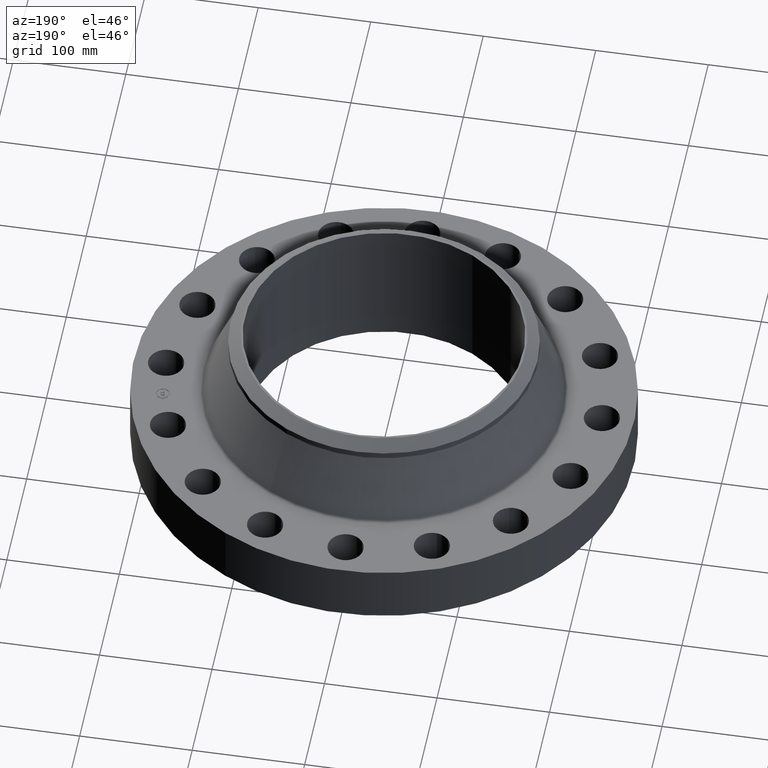
[diagram: clean part render]
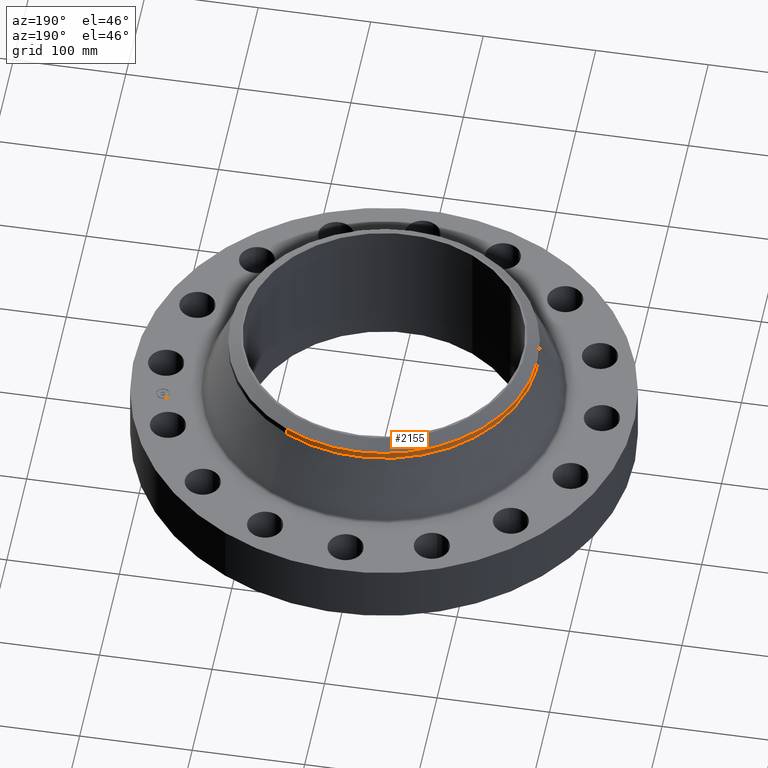
[diagram: same view with one face highlighted and labeled with its STEP entity id]
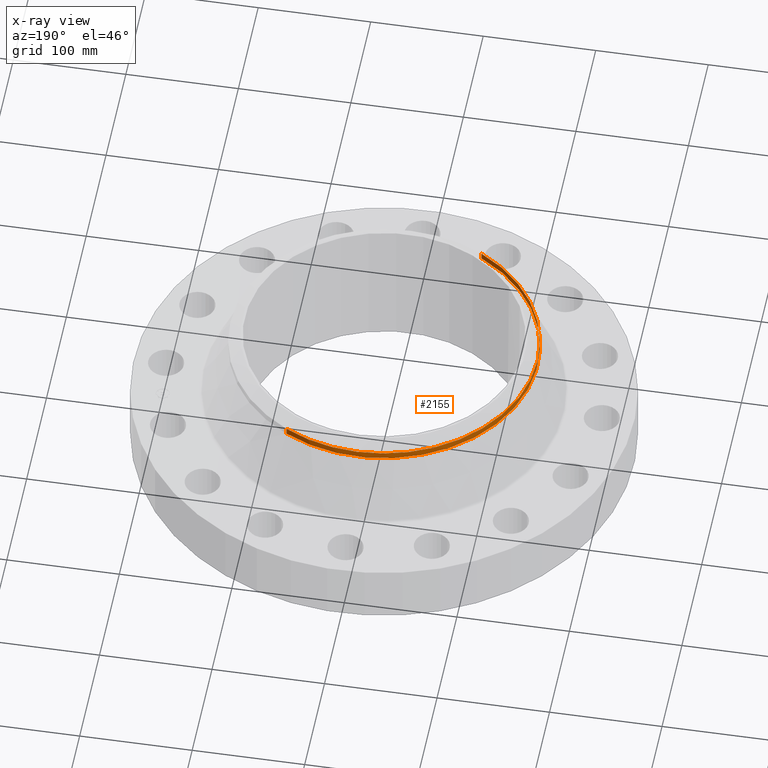
[diagram: x-ray of the same camera — body ghosted, the highlighted face saturated]
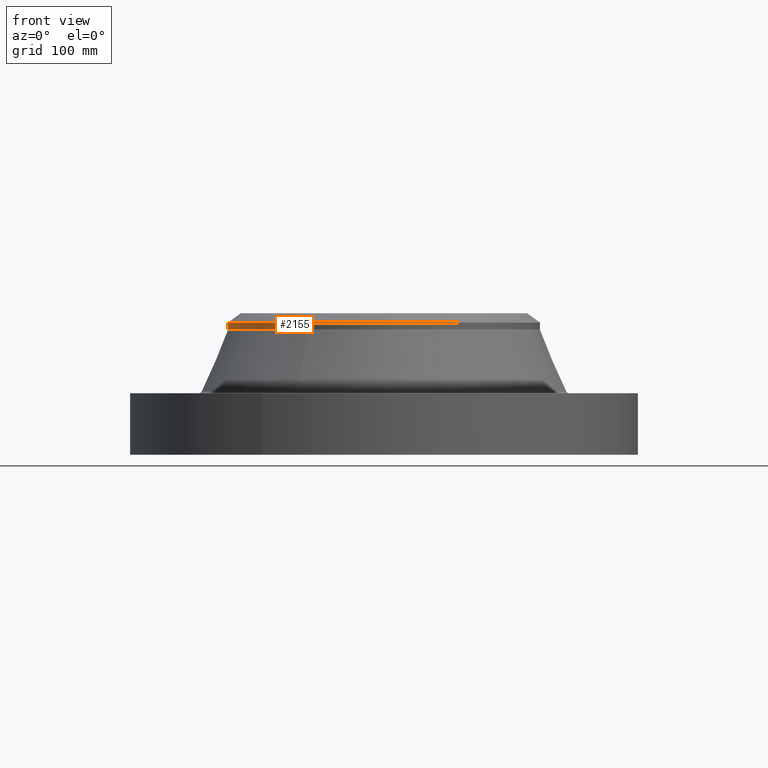
[diagram: same view with one face highlighted and labeled with its STEP entity id]
A machine part, auxiliary view. The second image highlights one B-rep face of the part: STEP entity #2155.
The next image is the same camera in x-ray: the body ghosted, the highlighted face saturated — about 0% of this face is hidden behind the body in this view.
A second angle (front view) of the same face is appended — the face is thin or edge-on in the first view.
In plain terms, the highlighted cylindrical surface (partial cylindrical patch) has radius 136.525 mm, axis along (-0, 0, -1).
Its self-contained STEP definition (entity closure, byte-faithful):
#1828=AXIS2_PLACEMENT_3D('Circle Axis2P3D',#1826,#1827,$) ;
#2083=AXIS2_PLACEMENT_3D('Circle Axis2P3D',#2081,#2082,$) ;
#2108=AXIS2_PLACEMENT_3D('Circle Axis2P3D',#2106,#2107,$) ;
#2136=AXIS2_PLACEMENT_3D('Cylinder Axis2P3D',#2133,#2134,#2135) ;
#1823=CARTESIAN_POINT('Vertex',(-2.57691227001,-4.71700627018,4.32053548146)) ;
#1826=CARTESIAN_POINT('Axis2P3D Location',(0.,0.,4.32053548146)) ;
#1830=CARTESIAN_POINT('Vertex',(2.57691227001,4.71700627018,4.32053548146)) ;
#2064=CARTESIAN_POINT('Vertex',(-2.57691227001,4.71700627018,4.5567559539)) ;
#2078=CARTESIAN_POINT('Vertex',(2.57691227001,4.71700627018,4.5567559539)) ;
#2081=CARTESIAN_POINT('Axis2P3D Location',(0.,0.,4.5567559539)) ;
#2106=CARTESIAN_POINT('Axis2P3D Location',(0.,0.,4.5567559539)) ;
#2110=CARTESIAN_POINT('Vertex',(-2.57691227001,-4.71700627018,4.5567559539)) ;
#2133=CARTESIAN_POINT('Axis2P3D Location',(0.,0.,2.44000000001)) ;
#2138=CARTESIAN_POINT('Line Origine',(2.57691227001,4.71700627018,4.43864571768)) ;
#2143=CARTESIAN_POINT('Line Origine',(-2.57691227001,-4.71700627018,4.43864571768)) ;
#1827=DIRECTION('Axis2P3D Direction',(-0.,0.,-0.0393700787402)) ;
#2082=DIRECTION('Axis2P3D Direction',(-0.,0.,-0.0393700787402)) ;
#2107=DIRECTION('Axis2P3D Direction',(-0.,0.,-0.0393700787402)) ;
#2134=DIRECTION('Axis2P3D Direction',(-0.,0.,-0.0393700787402)) ;
#2135=DIRECTION('Axis2P3D XDirection',(-0.0188750212049,-0.0345504945626,0.)) ;
#2139=DIRECTION('Vector Direction',(0.,0.,-0.0393700787402)) ;
#2144=DIRECTION('Vector Direction',(0.,0.,-0.0393700787402)) ;
#2140=VECTOR('Line Direction',#2139,0.0393700787402) ;
#2145=VECTOR('Line Direction',#2144,0.0393700787402) ;
#2149=ORIENTED_EDGE('',*,*,#2142,.F.) ;
#2150=ORIENTED_EDGE('',*,*,#1832,.F.) ;
#2151=ORIENTED_EDGE('',*,*,#2147,.T.) ;
#2152=ORIENTED_EDGE('',*,*,#2112,.F.) ;
#2153=ORIENTED_EDGE('',*,*,#2085,.T.) ;
#2155=ADVANCED_FACE('PartBody',(#2154),#2137,.T.) ;
#1829=CIRCLE('generated circle',#1828,5.37500000002) ;
#2084=CIRCLE('generated circle',#2083,5.37500000002) ;
#2109=CIRCLE('generated circle',#2108,5.37500000002) ;
#2137=CYLINDRICAL_SURFACE('generated cylinder',#2136,5.37500000002) ;
#1832=EDGE_CURVE('',#1824,#1831,#1829,.T.) ;
#2085=EDGE_CURVE('',#2065,#2079,#2084,.T.) ;
#2112=EDGE_CURVE('',#2065,#2111,#2109,.F.) ;
#2142=EDGE_CURVE('',#1831,#2079,#2141,.F.) ;
#2147=EDGE_CURVE('',#1824,#2111,#2146,.F.) ;
#2148=EDGE_LOOP('',(#2149,#2150,#2151,#2152,#2153)) ;
#2154=FACE_OUTER_BOUND('',#2148,.T.) ;
#2141=LINE('Line',#2138,#2140) ;
#2146=LINE('Line',#2143,#2145) ;
#1824=VERTEX_POINT('',#1823) ;
#1831=VERTEX_POINT('',#1830) ;
#2065=VERTEX_POINT('',#2064) ;
#2079=VERTEX_POINT('',#2078) ;
#2111=VERTEX_POINT('',#2110) ;